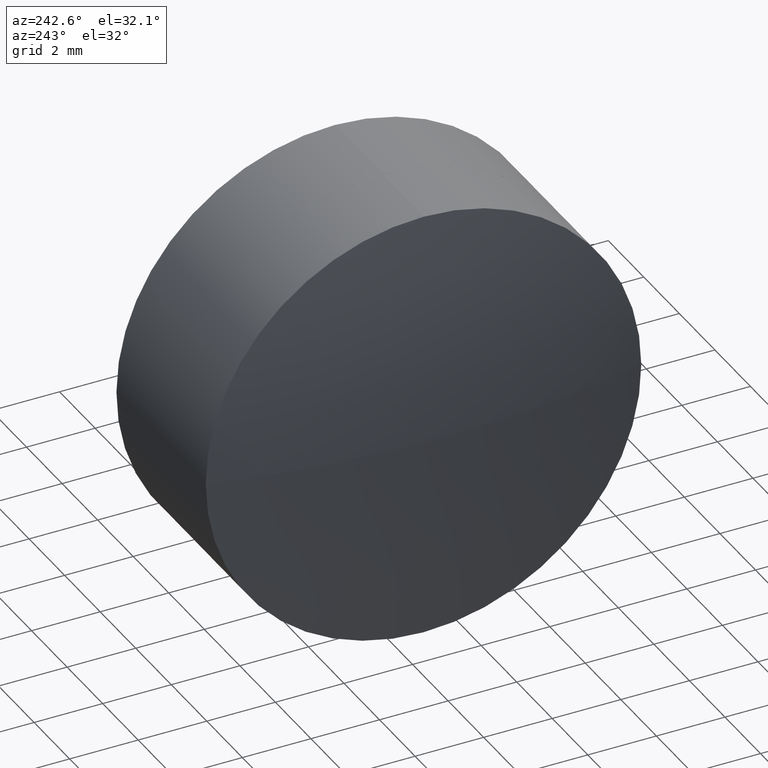
[diagram: clean part render]
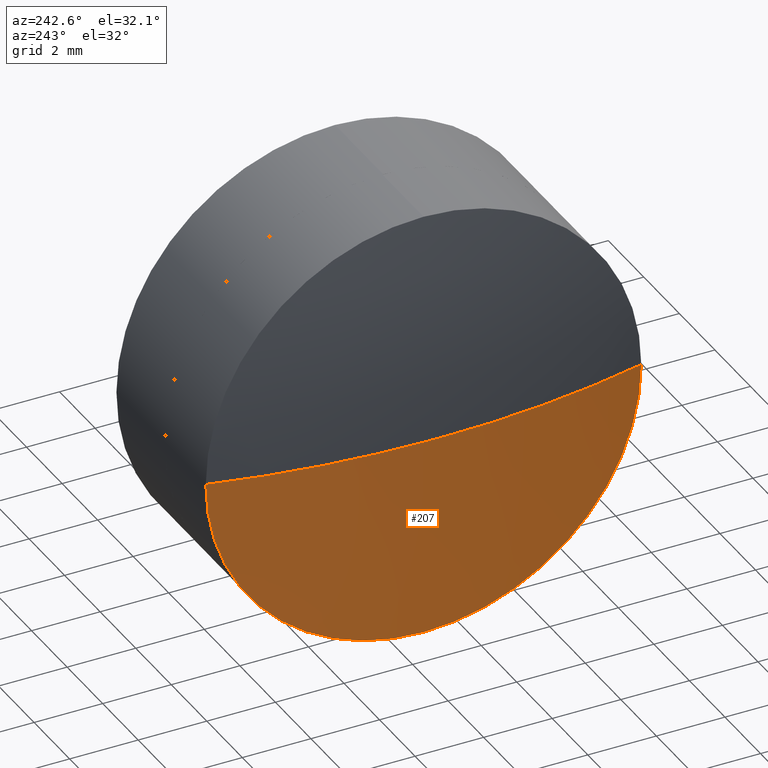
[diagram: same view with one face highlighted and labeled with its STEP entity id]
A machine part, auxiliary view. The second image highlights one B-rep face of the part: STEP entity #207.
In plain terms, the highlighted spherical surface has radius 26.34 mm.
Its self-contained STEP definition (entity closure, byte-faithful):
#3 = VERTEX_POINT ( 'NONE', #325 ) ;
#26 = EDGE_CURVE ( 'NONE', #3, #435, #308, .T. ) ;
#60 = AXIS2_PLACEMENT_3D ( 'NONE', #266, #91, #226 ) ;
#66 = DIRECTION ( 'NONE',  ( 0.000000000000000000, 1.000000000000000000, 0.000000000000000000 ) ) ;
#69 = DIRECTION ( 'NONE',  ( 0.000000000000000000, 0.000000000000000000, 1.000000000000000000 ) ) ;
#75 = CARTESIAN_POINT ( 'NONE',  ( -19.58046947869131316, 29.23725402614865843, 0.000000000000000000 ) ) ;
#87 = ORIENTED_EDGE ( 'NONE', *, *, #313, .T. ) ;
#91 = DIRECTION ( 'NONE',  ( -1.000000000000000000, -0.000000000000000000, -0.000000000000000000 ) ) ;
#98 = SPHERICAL_SURFACE ( 'NONE', #377, 26.33999999999976183 ) ;
#108 = CIRCLE ( 'NONE', #167, 26.33999999999976183 ) ;
#117 = VERTEX_POINT ( 'NONE', #439 ) ;
#125 = DIRECTION ( 'NONE',  ( -0.000000000000000000, 0.000000000000000000, -1.000000000000000000 ) ) ;
#128 = DIRECTION ( 'NONE',  ( 0.000000000000000000, 1.224646799147353207E-16, -1.000000000000000000 ) ) ;
#133 = CIRCLE ( 'NONE', #336, 26.33999999999976538 ) ;
#160 = CARTESIAN_POINT ( 'NONE',  ( -19.58046947869131316, 29.23725402614865843, 0.000000000000000000 ) ) ;
#167 = AXIS2_PLACEMENT_3D ( 'NONE', #75, #310, #214 ) ;
#190 = EDGE_LOOP ( 'NONE', ( #87, #250, #216, #319 ) ) ;
#207 = ADVANCED_FACE ( 'NONE', ( #337 ), #98, .T. ) ;
#214 = DIRECTION ( 'NONE',  ( 1.000000000000000000, 0.000000000000000000, 0.000000000000000000 ) ) ;
#215 = EDGE_CURVE ( 'NONE', #435, #419, #133, .T. ) ;
#216 = ORIENTED_EDGE ( 'NONE', *, *, #215, .T. ) ;
#226 = DIRECTION ( 'NONE',  ( 0.000000000000000000, 0.000000000000000000, 1.000000000000000000 ) ) ;
#250 = ORIENTED_EDGE ( 'NONE', *, *, #26, .T. ) ;
#266 = CARTESIAN_POINT ( 'NONE',  ( -45.14358939782461988, 29.23725402614865843, 0.000000000000000000 ) ) ;
#275 = DIRECTION ( 'NONE',  ( -1.000000000000000000, -0.000000000000000000, -0.000000000000000000 ) ) ;
#286 = AXIS2_PLACEMENT_3D ( 'NONE', #346, #275, #69 ) ;
#300 = DIRECTION ( 'NONE',  ( 0.000000000000000000, 1.000000000000000000, 1.224646799147353207E-16 ) ) ;
#308 = CIRCLE ( 'NONE', #60, 6.349999999999999645 ) ;
#310 = DIRECTION ( 'NONE',  ( -0.000000000000000000, 0.000000000000000000, 1.000000000000000000 ) ) ;
#313 = EDGE_CURVE ( 'NONE', #117, #3, #397, .T. ) ;
#319 = ORIENTED_EDGE ( 'NONE', *, *, #400, .F. ) ;
#325 = CARTESIAN_POINT ( 'NONE',  ( -45.14358939782461988, 29.23725402614865843, -6.349999999999999645 ) ) ;
#336 = AXIS2_PLACEMENT_3D ( 'NONE', #160, #128, #300 ) ;
#337 = FACE_OUTER_BOUND ( 'NONE', #190, .T. ) ;
#340 = CARTESIAN_POINT ( 'NONE',  ( -45.92046947869107498, 29.23725402614865843, 0.000000000000000000 ) ) ;
#346 = CARTESIAN_POINT ( 'NONE',  ( -45.14358939782461988, 29.23725402614865843, 0.000000000000000000 ) ) ;
#372 = CARTESIAN_POINT ( 'NONE',  ( -19.58046947869131316, 29.23725402614865843, 0.000000000000000000 ) ) ;
#377 = AXIS2_PLACEMENT_3D ( 'NONE', #372, #125, #66 ) ;
#397 = CIRCLE ( 'NONE', #286, 6.349999999999999645 ) ;
#400 = EDGE_CURVE ( 'NONE', #117, #419, #108, .T. ) ;
#419 = VERTEX_POINT ( 'NONE', #340 ) ;
#435 = VERTEX_POINT ( 'NONE', #446 ) ;
#439 = CARTESIAN_POINT ( 'NONE',  ( -45.14358939782461988, 35.58725402614855682, 0.000000000000000000 ) ) ;
#446 = CARTESIAN_POINT ( 'NONE',  ( -45.14358939782461988, 22.88725402614876003, -7.776507174585568903E-16 ) ) ;